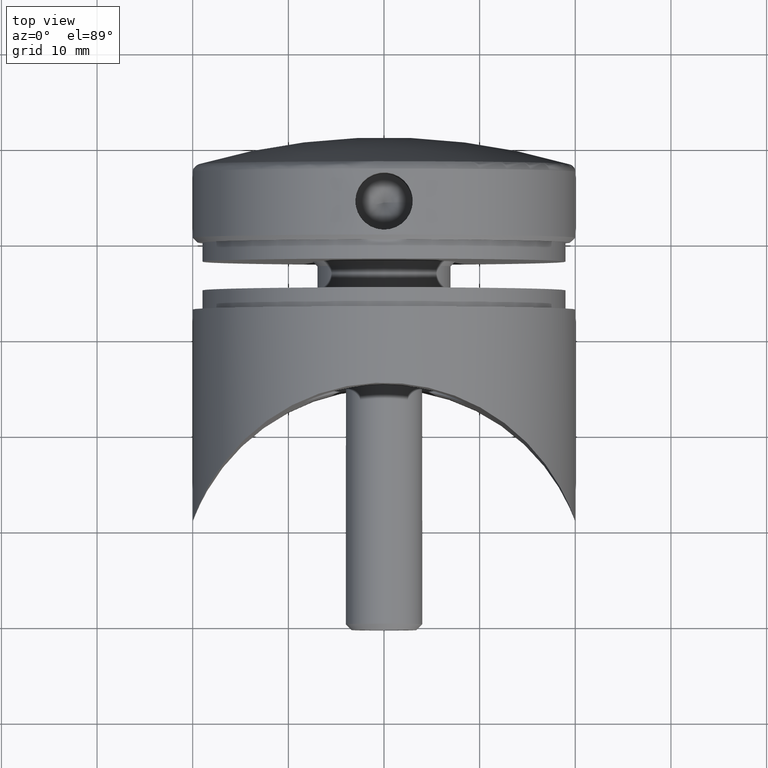
[diagram: clean part render]
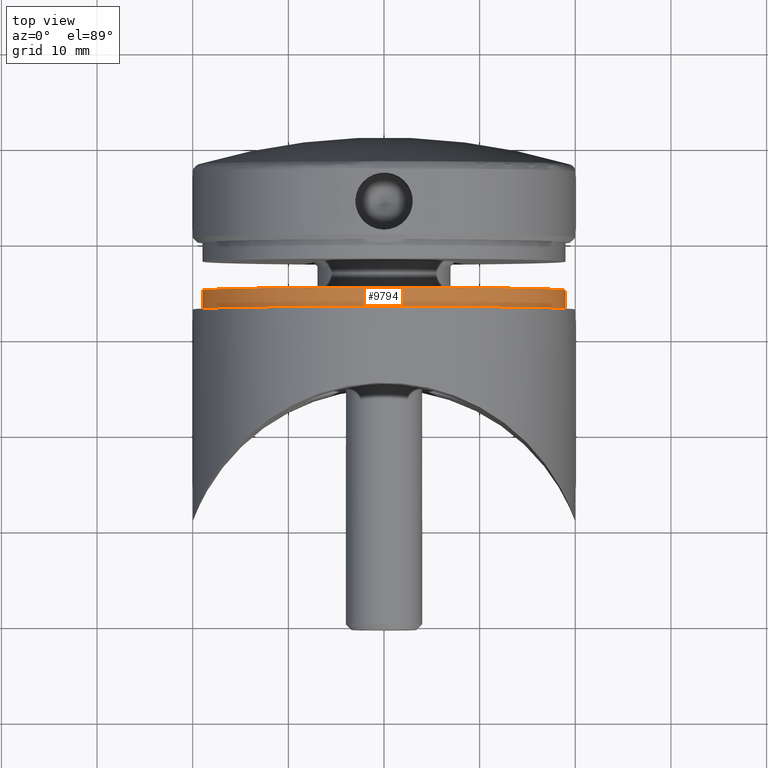
[diagram: same view with one face highlighted and labeled with its STEP entity id]
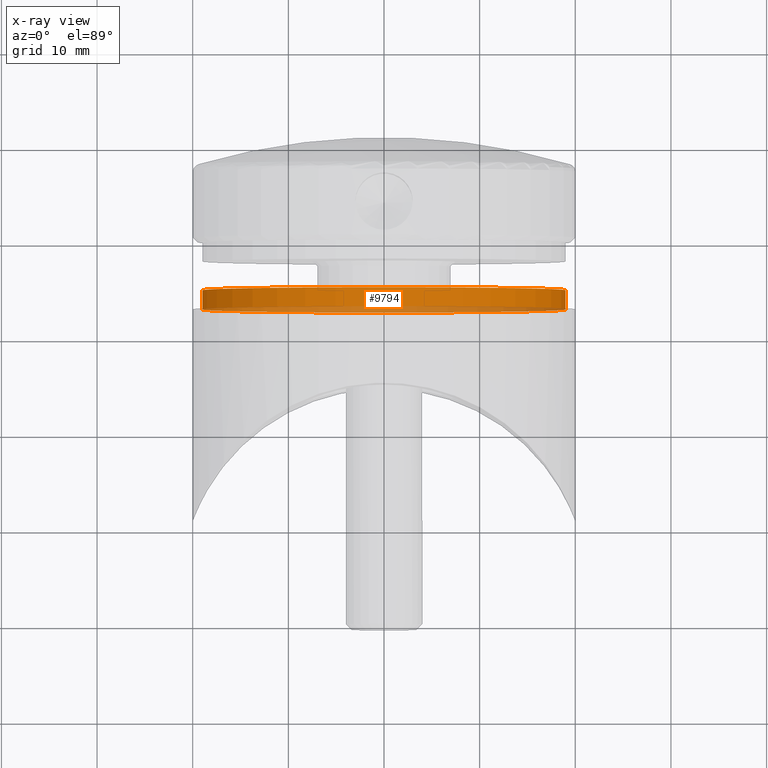
[diagram: x-ray of the same camera — body ghosted, the highlighted face saturated]
A machine part, top view. The second image highlights one B-rep face of the part: STEP entity #9794.
The next image is the same camera in x-ray: the body ghosted, the highlighted face saturated — about 21% of this face is hidden behind the body in this view.
In plain terms, the highlighted cylindrical surface (bore or boss wall) has radius 19 mm, axis along (-0, -1, -0).
Its self-contained STEP definition (entity closure, byte-faithful):
#138 = CYLINDRICAL_SURFACE ( 'NONE', #1103, 19.00000000000000000 ) ;
#464 = CIRCLE ( 'NONE', #15132, 19.00000000000000000 ) ;
#952 = DIRECTION ( 'NONE',  ( 0.000000000000000000, 0.000000000000000000, -1.000000000000000000 ) ) ;
#1103 = AXIS2_PLACEMENT_3D ( 'NONE', #4455, #15055, #952 ) ;
#1471 = VERTEX_POINT ( 'NONE', #4288 ) ;
#1828 = CARTESIAN_POINT ( 'NONE',  ( 0.000000000000000000, 0.000000000000000000, -19.00000000000000000 ) ) ;
#2156 = AXIS2_PLACEMENT_3D ( 'NONE', #2524, #7200, #7152 ) ;
#2524 = CARTESIAN_POINT ( 'NONE',  ( 0.000000000000000000, 0.000000000000000000, 0.000000000000000000 ) ) ;
#4288 = CARTESIAN_POINT ( 'NONE',  ( 0.000000000000000000, 2.000000000000000000, -19.00000000000000000 ) ) ;
#4455 = CARTESIAN_POINT ( 'NONE',  ( 0.000000000000000000, 0.000000000000000000, 0.000000000000000000 ) ) ;
#5320 = CIRCLE ( 'NONE', #2156, 19.00000000000000000 ) ;
#6401 = CARTESIAN_POINT ( 'NONE',  ( 0.000000000000000000, 2.000000000000000000, 0.000000000000000000 ) ) ;
#7152 = DIRECTION ( 'NONE',  ( 0.000000000000000000, 0.000000000000000000, -1.000000000000000000 ) ) ;
#7200 = DIRECTION ( 'NONE',  ( -0.000000000000000000, -1.000000000000000000, -0.000000000000000000 ) ) ;
#7600 = DIRECTION ( 'NONE',  ( -0.000000000000000000, -1.000000000000000000, -0.000000000000000000 ) ) ;
#7929 = FACE_OUTER_BOUND ( 'NONE', #14701, .T. ) ;
#8659 = FACE_OUTER_BOUND ( 'NONE', #9438, .T. ) ;
#8726 = DIRECTION ( 'NONE',  ( 0.000000000000000000, 0.000000000000000000, -1.000000000000000000 ) ) ;
#9438 = EDGE_LOOP ( 'NONE', ( #12758 ) ) ;
#9471 = EDGE_CURVE ( 'NONE', #13420, #13420, #5320, .T. ) ;
#9794 = ADVANCED_FACE ( 'NONE', ( #7929, #8659 ), #138, .T. ) ;
#10471 = ORIENTED_EDGE ( 'NONE', *, *, #12753, .T. ) ;
#12753 = EDGE_CURVE ( 'NONE', #1471, #1471, #464, .T. ) ;
#12758 = ORIENTED_EDGE ( 'NONE', *, *, #9471, .F. ) ;
#13420 = VERTEX_POINT ( 'NONE', #1828 ) ;
#14701 = EDGE_LOOP ( 'NONE', ( #10471 ) ) ;
#15055 = DIRECTION ( 'NONE',  ( -0.000000000000000000, -1.000000000000000000, -0.000000000000000000 ) ) ;
#15132 = AXIS2_PLACEMENT_3D ( 'NONE', #6401, #7600, #8726 ) ;